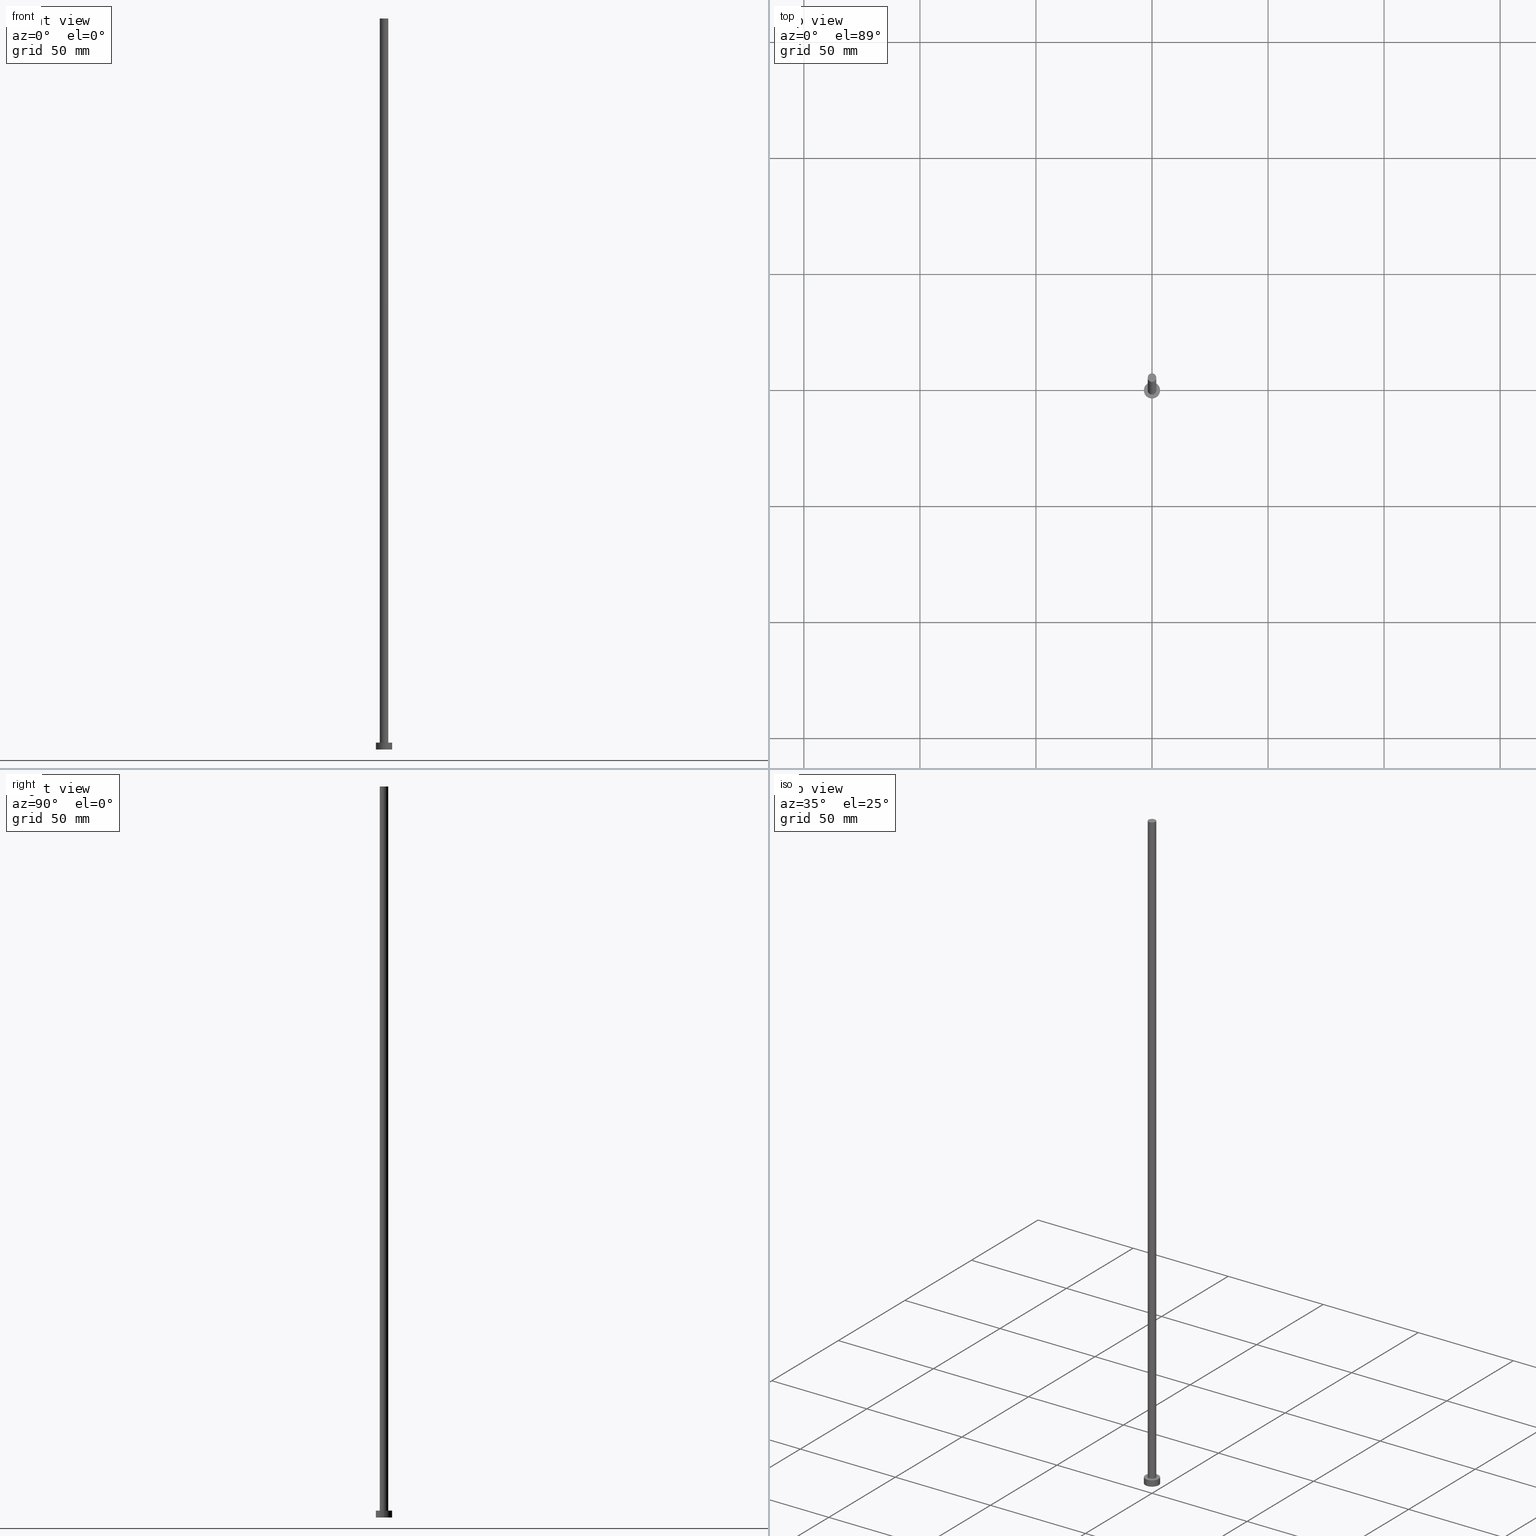
[diagram: canonical four-view strip — front | top / right | iso, engineering-drawing reading convention]
A machine part, canonical four-view strip (front | top / right | iso — engineering-drawing reading convention). The complete STEP part file that produces these views, byte-faithful:
ISO-10303-21;
HEADER;
FILE_DESCRIPTION (( 'STEP AP203' ),
    '1' );
FILE_NAME ('9837.STEP',
    '2026-02-11T15:50:41',
    ( '' ),
    ( '' ),
    'SwSTEP 2.0',
    'SolidWorks 2019',
    '' );
FILE_SCHEMA (( 'CONFIG_CONTROL_DESIGN' ));
ENDSEC;

DATA;
#1 = EDGE_CURVE ( 'NONE', #177, #40, #57, .T. ) ;
#2 = DIRECTION ( 'NONE',  ( 1.000000000000000000, 0.000000000000000000, 0.000000000000000000 ) ) ;
#3 = ORIENTED_EDGE ( 'NONE', *, *, #1, .T. ) ;
#4 = DATE_AND_TIME ( #220, #72 ) ;
#5 = VERTEX_POINT ( 'NONE', #159 ) ;
#6 = CALENDAR_DATE ( 2026, 11, 2 ) ;
#7 = VERTEX_POINT ( 'NONE', #65 ) ;
#8 =( LENGTH_UNIT ( ) NAMED_UNIT ( * ) SI_UNIT ( .MILLI., .METRE. ) );
#9 = ORIENTED_EDGE ( 'NONE', *, *, #173, .F. ) ;
#10 = LINE ( 'NONE', #33, #174 ) ;
#11 = CARTESIAN_POINT ( 'NONE',  ( -3.500000000000000444, 0.000000000000000000, 3.000000000000000000 ) ) ;
#12 = CALENDAR_DATE ( 2026, 11, 2 ) ;
#13 = FACE_OUTER_BOUND ( 'NONE', #138, .T. ) ;
#14 = CALENDAR_DATE ( 2026, 11, 2 ) ;
#15 = AXIS2_PLACEMENT_3D ( 'NONE', #191, #213, #146 ) ;
#16 = EDGE_CURVE ( 'NONE', #40, #177, #201, .T. ) ;
#17 = CC_DESIGN_PERSON_AND_ORGANIZATION_ASSIGNMENT ( #62, #122, ( #244 ) ) ;
#18 = CLOSED_SHELL ( 'NONE', ( #166, #189, #137, #198, #136, #123, #64 ) ) ;
#19 = UNCERTAINTY_MEASURE_WITH_UNIT (LENGTH_MEASURE( 1.000000000000000082E-05 ), #8, 'distance_accuracy_value', 'NONE');
#20 = APPLICATION_CONTEXT ( 'configuration controlled 3d designs of mechanical parts and assemblies' ) ;
#21 = ORIENTED_EDGE ( 'NONE', *, *, #209, .T. ) ;
#22 = PERSON_AND_ORGANIZATION ( #242, #180 ) ;
#23 = EDGE_LOOP ( 'NONE', ( #162, #77, #119, #38 ) ) ;
#24 = DIRECTION ( 'NONE',  ( 1.000000000000000000, 0.000000000000000000, 0.000000000000000000 ) ) ;
#25 = CIRCLE ( 'NONE', #80, 1.850000000000000089 ) ;
#26 = PERSON_AND_ORGANIZATION_ROLE ( 'creator' ) ;
#27 = EDGE_LOOP ( 'NONE', ( #21, #241 ) ) ;
#28 = DIRECTION ( 'NONE',  ( 0.000000000000000000, 0.000000000000000000, 1.000000000000000000 ) ) ;
#29 = FACE_OUTER_BOUND ( 'NONE', #179, .T. ) ;
#30 = PERSON_AND_ORGANIZATION ( #242, #180 ) ;
#31 = DIRECTION ( 'NONE',  ( -0.000000000000000000, -0.000000000000000000, -1.000000000000000000 ) ) ;
#32 = APPROVAL_STATUS ( 'not_yet_approved' ) ;
#33 = CARTESIAN_POINT ( 'NONE',  ( 1.850000000000000089, 2.265596578422603100E-16, 315.0000000000000000 ) ) ;
#34 = PRODUCT_DEFINITION_FORMATION_WITH_SPECIFIED_SOURCE ( 'LIBOVOLN�', '', #244, .NOT_KNOWN. ) ;
#35 = EDGE_CURVE ( 'NONE', #156, #116, #153, .T. ) ;
#36 = LOCAL_TIME ( 16, 50, 41.00000000000000000, #181 ) ;
#37 = CIRCLE ( 'NONE', #15, 3.500000000000000444 ) ;
#38 = ORIENTED_EDGE ( 'NONE', *, *, #243, .T. ) ;
#39 = DIRECTION ( 'NONE',  ( -1.000000000000000000, 0.000000000000000000, 0.000000000000000000 ) ) ;
#40 = VERTEX_POINT ( 'NONE', #144 ) ;
#41 = APPROVAL_ROLE ( '' ) ;
#42 = CARTESIAN_POINT ( 'NONE',  ( 0.000000000000000000, 0.000000000000000000, 3.000000000000000000 ) ) ;
#43 = DIRECTION ( 'NONE',  ( 0.000000000000000000, 0.000000000000000000, 1.000000000000000000 ) ) ;
#44 = ORIENTED_EDGE ( 'NONE', *, *, #89, .T. ) ;
#45 = LOCAL_TIME ( 16, 50, 41.00000000000000000, #50 ) ;
#46 = CARTESIAN_POINT ( 'NONE',  ( 0.000000000000000000, 0.000000000000000000, 0.000000000000000000 ) ) ;
#47 = CARTESIAN_POINT ( 'NONE',  ( 1.850000000000000089, 2.265596578422603100E-16, 3.000000000000000000 ) ) ;
#48 = APPROVAL_DATE_TIME ( #197, #254 ) ;
#49 = LINE ( 'NONE', #129, #60 ) ;
#50 = COORDINATED_UNIVERSAL_TIME_OFFSET ( 1, 0, .AHEAD. ) ;
#51 = CARTESIAN_POINT ( 'NONE',  ( 0.000000000000000000, 0.000000000000000000, 315.0000000000000000 ) ) ;
#52 = LOCAL_TIME ( 16, 50, 41.00000000000000000, #226 ) ;
#53 = DATE_AND_TIME ( #14, #97 ) ;
#54 = DIRECTION ( 'NONE',  ( 1.000000000000000000, 0.000000000000000000, 0.000000000000000000 ) ) ;
#55 = PERSON_AND_ORGANIZATION ( #242, #180 ) ;
#56 = CARTESIAN_POINT ( 'NONE',  ( -1.850000000000000089, 0.000000000000000000, 315.0000000000000000 ) ) ;
#57 = CIRCLE ( 'NONE', #115, 1.850000000000000089 ) ;
#58 = ORIENTED_EDGE ( 'NONE', *, *, #16, .T. ) ;
#59 = DIRECTION ( 'NONE',  ( 0.000000000000000000, 0.000000000000000000, 1.000000000000000000 ) ) ;
#60 = VECTOR ( 'NONE', #130, 1000.000000000000000 ) ;
#61 = VERTEX_POINT ( 'NONE', #47 ) ;
#62 = PERSON_AND_ORGANIZATION ( #242, #180 ) ;
#63 = VERTEX_POINT ( 'NONE', #73 ) ;
#64 = ADVANCED_FACE ( 'NONE', ( #152 ), #94, .T. ) ;
#65 = CARTESIAN_POINT ( 'NONE',  ( 3.500000000000000444, 4.286263797015737088E-16, 0.000000000000000000 ) ) ;
#66 = APPLICATION_PROTOCOL_DEFINITION ( 'international standard', 'config_control_design', 1994, #150 ) ;
#67 = ORIENTED_EDGE ( 'NONE', *, *, #209, .F. ) ;
#68 = APPROVAL_STATUS ( 'not_yet_approved' ) ;
#69 = FACE_OUTER_BOUND ( 'NONE', #206, .T. ) ;
#70 = CYLINDRICAL_SURFACE ( 'NONE', #255, 3.500000000000000444 ) ;
#71 = LINE ( 'NONE', #252, #222 ) ;
#72 = LOCAL_TIME ( 16, 50, 41.00000000000000000, #178 ) ;
#73 = CARTESIAN_POINT ( 'NONE',  ( -1.850000000000000089, 0.000000000000000000, 3.000000000000000000 ) ) ;
#74 = CIRCLE ( 'NONE', #251, 1.850000000000000089 ) ;
#75 = ADVANCED_BREP_SHAPE_REPRESENTATION ( '9837', ( #91, #143 ), #231 ) ;
#76 = PLANE ( 'NONE',  #96 ) ;
#77 = ORIENTED_EDGE ( 'NONE', *, *, #1, .F. ) ;
#78 = DIRECTION ( 'NONE',  ( 0.000000000000000000, 0.000000000000000000, 1.000000000000000000 ) ) ;
#79 = EDGE_CURVE ( 'NONE', #7, #5, #37, .T. ) ;
#80 = AXIS2_PLACEMENT_3D ( 'NONE', #160, #155, #2 ) ;
#81 = DIRECTION ( 'NONE',  ( 1.000000000000000000, 0.000000000000000000, 0.000000000000000000 ) ) ;
#82 = DATE_AND_TIME ( #6, #36 ) ;
#83 = PRODUCT_DEFINITION_SHAPE ( 'NONE', 'NONE',  #93 ) ;
#84 =( NAMED_UNIT ( * ) PLANE_ANGLE_UNIT ( ) SI_UNIT ( $, .RADIAN. ) );
#85 = ORIENTED_EDGE ( 'NONE', *, *, #79, .T. ) ;
#86 = CC_DESIGN_DATE_AND_TIME_ASSIGNMENT ( #4, #139, ( #93 ) ) ;
#87 =( NAMED_UNIT ( * ) SI_UNIT ( $, .STERADIAN. ) SOLID_ANGLE_UNIT ( ) );
#88 = DIRECTION ( 'NONE',  ( 0.000000000000000000, 0.000000000000000000, 1.000000000000000000 ) ) ;
#89 = EDGE_CURVE ( 'NONE', #5, #7, #230, .T. ) ;
#90 = CARTESIAN_POINT ( 'NONE',  ( 0.000000000000000000, 0.000000000000000000, 0.000000000000000000 ) ) ;
#91 = MANIFOLD_SOLID_BREP ( 'P�idat vysunut�m3', #18 ) ;
#92 = DIRECTION ( 'NONE',  ( -0.000000000000000000, -0.000000000000000000, -1.000000000000000000 ) ) ;
#93 = PRODUCT_DEFINITION ( 'NEZN�M�', '', #34, #253 ) ;
#94 = PLANE ( 'NONE',  #124 ) ;
#95 = AXIS2_PLACEMENT_3D ( 'NONE', #42, #183, #245 ) ;
#96 = AXIS2_PLACEMENT_3D ( 'NONE', #207, #59, #204 ) ;
#97 = LOCAL_TIME ( 16, 50, 41.00000000000000000, #248 ) ;
#98 = EDGE_CURVE ( 'NONE', #156, #7, #71, .T. ) ;
#99 = EDGE_LOOP ( 'NONE', ( #125, #67, #182, #44 ) ) ;
#100 = DIRECTION ( 'NONE',  ( -0.000000000000000000, -0.000000000000000000, -1.000000000000000000 ) ) ;
#101 = CARTESIAN_POINT ( 'NONE',  ( 0.000000000000000000, 0.000000000000000000, 315.0000000000000000 ) ) ;
#102 = PERSON_AND_ORGANIZATION ( #242, #180 ) ;
#103 = ORIENTED_EDGE ( 'NONE', *, *, #89, .F. ) ;
#104 = CC_DESIGN_PERSON_AND_ORGANIZATION_ASSIGNMENT ( #55, #165, ( #34 ) ) ;
#105 = DIRECTION ( 'NONE',  ( 0.000000000000000000, 0.000000000000000000, 1.000000000000000000 ) ) ;
#106 = APPLICATION_PROTOCOL_DEFINITION ( 'international standard', 'config_control_design', 1994, #20 ) ;
#107 = DIRECTION ( 'NONE',  ( 0.000000000000000000, 0.000000000000000000, 1.000000000000000000 ) ) ;
#108 = DIRECTION ( 'NONE',  ( -0.000000000000000000, -0.000000000000000000, -1.000000000000000000 ) ) ;
#109 = APPROVAL_PERSON_ORGANIZATION ( #234, #175, #172 ) ;
#110 = DIRECTION ( 'NONE',  ( -0.000000000000000000, -0.000000000000000000, -1.000000000000000000 ) ) ;
#111 = APPROVAL_DATE_TIME ( #134, #175 ) ;
#112 = DIRECTION ( 'NONE',  ( -1.000000000000000000, 0.000000000000000000, 0.000000000000000000 ) ) ;
#113 = AXIS2_PLACEMENT_3D ( 'NONE', #133, #92, #190 ) ;
#114 = EDGE_CURVE ( 'NONE', #177, #63, #235, .T. ) ;
#115 = AXIS2_PLACEMENT_3D ( 'NONE', #101, #105, #81 ) ;
#116 = VERTEX_POINT ( 'NONE', #11 ) ;
#117 = CC_DESIGN_PERSON_AND_ORGANIZATION_ASSIGNMENT ( #22, #26, ( #93 ) ) ;
#118 = MECHANICAL_CONTEXT ( 'NONE', #20, 'mechanical' ) ;
#119 = ORIENTED_EDGE ( 'NONE', *, *, #114, .T. ) ;
#120 = DIRECTION ( 'NONE',  ( 1.000000000000000000, 0.000000000000000000, 0.000000000000000000 ) ) ;
#121 = EDGE_LOOP ( 'NONE', ( #200, #238 ) ) ;
#122 = PERSON_AND_ORGANIZATION_ROLE ( 'design_owner' ) ;
#123 = ADVANCED_FACE ( 'NONE', ( #164 ), #132, .T. ) ;
#124 = AXIS2_PLACEMENT_3D ( 'NONE', #148, #28, #210 ) ;
#125 = ORIENTED_EDGE ( 'NONE', *, *, #98, .F. ) ;
#126 = EDGE_CURVE ( 'NONE', #40, #61, #10, .T. ) ;
#127 = ORIENTED_EDGE ( 'NONE', *, *, #114, .F. ) ;
#128 = DIRECTION ( 'NONE',  ( 1.000000000000000000, 0.000000000000000000, 0.000000000000000000 ) ) ;
#129 = CARTESIAN_POINT ( 'NONE',  ( -3.500000000000000444, 0.000000000000000000, 3.000000000000000000 ) ) ;
#130 = DIRECTION ( 'NONE',  ( -0.000000000000000000, -0.000000000000000000, -1.000000000000000000 ) ) ;
#131 = AXIS2_PLACEMENT_3D ( 'NONE', #158, #100, #39 ) ;
#132 = CYLINDRICAL_SURFACE ( 'NONE', #113, 1.850000000000000089 ) ;
#133 = CARTESIAN_POINT ( 'NONE',  ( 0.000000000000000000, 0.000000000000000000, 315.0000000000000000 ) ) ;
#134 = DATE_AND_TIME ( #12, #45 ) ;
#135 = CIRCLE ( 'NONE', #246, 3.500000000000000444 ) ;
#136 = ADVANCED_FACE ( 'NONE', ( #29 ), #211, .F. ) ;
#137 = ADVANCED_FACE ( 'NONE', ( #167 ), #70, .T. ) ;
#138 = EDGE_LOOP ( 'NONE', ( #185, #154, #85, #9 ) ) ;
#139 = DATE_TIME_ROLE ( 'creation_date' ) ;
#140 = DIRECTION ( 'NONE',  ( 1.000000000000000000, 0.000000000000000000, 0.000000000000000000 ) ) ;
#141 = DIRECTION ( 'NONE',  ( 0.000000000000000000, 0.000000000000000000, 1.000000000000000000 ) ) ;
#142 = CC_DESIGN_PERSON_AND_ORGANIZATION_ASSIGNMENT ( #151, #147, ( #223 ) ) ;
#143 = AXIS2_PLACEMENT_3D ( 'NONE', #46, #43, #24 ) ;
#144 = CARTESIAN_POINT ( 'NONE',  ( 1.850000000000000089, 2.265596578422603100E-16, 315.0000000000000000 ) ) ;
#145 = APPROVAL_ROLE ( '' ) ;
#146 = DIRECTION ( 'NONE',  ( 1.000000000000000000, 0.000000000000000000, 0.000000000000000000 ) ) ;
#147 = PERSON_AND_ORGANIZATION_ROLE ( 'classification_officer' ) ;
#148 = CARTESIAN_POINT ( 'NONE',  ( 0.000000000000000000, 0.000000000000000000, 315.0000000000000000 ) ) ;
#149 = CYLINDRICAL_SURFACE ( 'NONE', #131, 3.500000000000000444 ) ;
#150 = APPLICATION_CONTEXT ( 'configuration controlled 3d designs of mechanical parts and assemblies' ) ;
#151 = PERSON_AND_ORGANIZATION ( #242, #180 ) ;
#152 = FACE_OUTER_BOUND ( 'NONE', #203, .T. ) ;
#153 = CIRCLE ( 'NONE', #95, 3.500000000000000444 ) ;
#154 = ORIENTED_EDGE ( 'NONE', *, *, #98, .T. ) ;
#155 = DIRECTION ( 'NONE',  ( 0.000000000000000000, 0.000000000000000000, 1.000000000000000000 ) ) ;
#156 = VERTEX_POINT ( 'NONE', #229 ) ;
#157 = AXIS2_PLACEMENT_3D ( 'NONE', #240, #141, #140 ) ;
#158 = CARTESIAN_POINT ( 'NONE',  ( 0.000000000000000000, 0.000000000000000000, 3.000000000000000000 ) ) ;
#159 = CARTESIAN_POINT ( 'NONE',  ( -3.500000000000000444, 0.000000000000000000, 0.000000000000000000 ) ) ;
#160 = CARTESIAN_POINT ( 'NONE',  ( 0.000000000000000000, 0.000000000000000000, 3.000000000000000000 ) ) ;
#161 = ORIENTED_EDGE ( 'NONE', *, *, #16, .F. ) ;
#162 = ORIENTED_EDGE ( 'NONE', *, *, #126, .F. ) ;
#163 = CARTESIAN_POINT ( 'NONE',  ( 0.000000000000000000, 0.000000000000000000, 3.000000000000000000 ) ) ;
#164 = FACE_OUTER_BOUND ( 'NONE', #23, .T. ) ;
#165 = PERSON_AND_ORGANIZATION_ROLE ( 'design_supplier' ) ;
#166 = ADVANCED_FACE ( 'NONE', ( #69 ), #168, .T. ) ;
#167 = FACE_OUTER_BOUND ( 'NONE', #99, .T. ) ;
#168 = CYLINDRICAL_SURFACE ( 'NONE', #194, 1.850000000000000089 ) ;
#169 = SECURITY_CLASSIFICATION_LEVEL ( 'unclassified' ) ;
#170 = DIRECTION ( 'NONE',  ( 0.000000000000000000, 0.000000000000000000, 1.000000000000000000 ) ) ;
#171 = CC_DESIGN_APPROVAL ( #237, ( #34 ) ) ;
#172 = APPROVAL_ROLE ( '' ) ;
#173 = EDGE_CURVE ( 'NONE', #116, #5, #49, .T. ) ;
#174 = VECTOR ( 'NONE', #108, 1000.000000000000000 ) ;
#175 = APPROVAL ( #32, 'NEUR�EN�' ) ;
#176 = CC_DESIGN_SECURITY_CLASSIFICATION ( #223, ( #34 ) ) ;
#177 = VERTEX_POINT ( 'NONE', #250 ) ;
#178 = COORDINATED_UNIVERSAL_TIME_OFFSET ( 1, 0, .AHEAD. ) ;
#179 = EDGE_LOOP ( 'NONE', ( #103, #215 ) ) ;
#180 = ORGANIZATION ( 'NEUR�EN�', 'NEUR�EN�', '' ) ;
#181 = COORDINATED_UNIVERSAL_TIME_OFFSET ( 1, 0, .AHEAD. ) ;
#182 = ORIENTED_EDGE ( 'NONE', *, *, #173, .T. ) ;
#183 = DIRECTION ( 'NONE',  ( 0.000000000000000000, 0.000000000000000000, 1.000000000000000000 ) ) ;
#184 = PERSON_AND_ORGANIZATION ( #242, #180 ) ;
#185 = ORIENTED_EDGE ( 'NONE', *, *, #35, .F. ) ;
#186 = SHAPE_DEFINITION_REPRESENTATION ( #83, #75 ) ;
#187 = VECTOR ( 'NONE', #110, 1000.000000000000000 ) ;
#188 = DIRECTION ( 'NONE',  ( 1.000000000000000000, 0.000000000000000000, -0.000000000000000000 ) ) ;
#189 = ADVANCED_FACE ( 'NONE', ( #13 ), #149, .T. ) ;
#190 = DIRECTION ( 'NONE',  ( -1.000000000000000000, 0.000000000000000000, 0.000000000000000000 ) ) ;
#191 = CARTESIAN_POINT ( 'NONE',  ( 0.000000000000000000, 0.000000000000000000, 0.000000000000000000 ) ) ;
#192 = APPROVAL_DATE_TIME ( #82, #237 ) ;
#193 = CC_DESIGN_PERSON_AND_ORGANIZATION_ASSIGNMENT ( #30, #228, ( #34 ) ) ;
#194 = AXIS2_PLACEMENT_3D ( 'NONE', #51, #227, #112 ) ;
#195 = CC_DESIGN_APPROVAL ( #175, ( #223 ) ) ;
#196 = AXIS2_PLACEMENT_3D ( 'NONE', #208, #170, #54 ) ;
#197 = DATE_AND_TIME ( #202, #52 ) ;
#198 = ADVANCED_FACE ( 'NONE', ( #239, #224 ), #76, .T. ) ;
#199 = CARTESIAN_POINT ( 'NONE',  ( 0.000000000000000000, 0.000000000000000000, 3.000000000000000000 ) ) ;
#200 = ORIENTED_EDGE ( 'NONE', *, *, #243, .F. ) ;
#201 = CIRCLE ( 'NONE', #157, 1.850000000000000089 ) ;
#202 = CALENDAR_DATE ( 2026, 11, 2 ) ;
#203 = EDGE_LOOP ( 'NONE', ( #3, #58 ) ) ;
#204 = DIRECTION ( 'NONE',  ( 1.000000000000000000, 0.000000000000000000, -0.000000000000000000 ) ) ;
#205 = PRODUCT_RELATED_PRODUCT_CATEGORY ( 'detail', '', ( #244 ) ) ;
#206 = EDGE_LOOP ( 'NONE', ( #161, #221, #218, #127 ) ) ;
#207 = CARTESIAN_POINT ( 'NONE',  ( 0.000000000000000000, 0.000000000000000000, 3.000000000000000000 ) ) ;
#208 = CARTESIAN_POINT ( 'NONE',  ( 0.000000000000000000, 0.000000000000000000, 0.000000000000000000 ) ) ;
#209 = EDGE_CURVE ( 'NONE', #116, #156, #135, .T. ) ;
#210 = DIRECTION ( 'NONE',  ( 1.000000000000000000, 0.000000000000000000, -0.000000000000000000 ) ) ;
#211 = PLANE ( 'NONE',  #216 ) ;
#212 = DATE_TIME_ROLE ( 'classification_date' ) ;
#213 = DIRECTION ( 'NONE',  ( 0.000000000000000000, 0.000000000000000000, 1.000000000000000000 ) ) ;
#214 = EDGE_CURVE ( 'NONE', #61, #63, #25, .T. ) ;
#215 = ORIENTED_EDGE ( 'NONE', *, *, #79, .F. ) ;
#216 = AXIS2_PLACEMENT_3D ( 'NONE', #90, #88, #188 ) ;
#217 = APPROVAL_PERSON_ORGANIZATION ( #184, #254, #145 ) ;
#218 = ORIENTED_EDGE ( 'NONE', *, *, #214, .T. ) ;
#219 = APPROVAL_STATUS ( 'not_yet_approved' ) ;
#220 = CALENDAR_DATE ( 2026, 11, 2 ) ;
#221 = ORIENTED_EDGE ( 'NONE', *, *, #126, .T. ) ;
#222 = VECTOR ( 'NONE', #247, 1000.000000000000000 ) ;
#223 = SECURITY_CLASSIFICATION ( '', '', #169 ) ;
#224 = FACE_OUTER_BOUND ( 'NONE', #27, .T. ) ;
#225 = CC_DESIGN_DATE_AND_TIME_ASSIGNMENT ( #53, #212, ( #223 ) ) ;
#226 = COORDINATED_UNIVERSAL_TIME_OFFSET ( 1, 0, .AHEAD. ) ;
#227 = DIRECTION ( 'NONE',  ( -0.000000000000000000, -0.000000000000000000, -1.000000000000000000 ) ) ;
#228 = PERSON_AND_ORGANIZATION_ROLE ( 'creator' ) ;
#229 = CARTESIAN_POINT ( 'NONE',  ( 3.500000000000000444, 4.286263797015737088E-16, 3.000000000000000000 ) ) ;
#230 = CIRCLE ( 'NONE', #196, 3.500000000000000444 ) ;
#231 =( GEOMETRIC_REPRESENTATION_CONTEXT ( 3 ) GLOBAL_UNCERTAINTY_ASSIGNED_CONTEXT ( ( #19 ) ) GLOBAL_UNIT_ASSIGNED_CONTEXT ( ( #8, #84, #87 ) ) REPRESENTATION_CONTEXT ( 'NONE', 'WORKASPACE' ) );
#232 = APPROVAL_PERSON_ORGANIZATION ( #102, #237, #41 ) ;
#233 = CARTESIAN_POINT ( 'NONE',  ( 0.000000000000000000, 0.000000000000000000, 3.000000000000000000 ) ) ;
#234 = PERSON_AND_ORGANIZATION ( #242, #180 ) ;
#235 = LINE ( 'NONE', #56, #187 ) ;
#236 = CC_DESIGN_APPROVAL ( #254, ( #93 ) ) ;
#237 = APPROVAL ( #219, 'NEUR�EN�' ) ;
#238 = ORIENTED_EDGE ( 'NONE', *, *, #214, .F. ) ;
#239 = FACE_BOUND ( 'NONE', #121, .T. ) ;
#240 = CARTESIAN_POINT ( 'NONE',  ( 0.000000000000000000, 0.000000000000000000, 315.0000000000000000 ) ) ;
#241 = ORIENTED_EDGE ( 'NONE', *, *, #35, .T. ) ;
#242 = PERSON ( 'NEUR�EN�', 'NEUR�EN�', 'NEUR�EN�', ('NEUR�EN�'), ('NEUR�EN�'), ('NEUR�EN�') ) ;
#243 = EDGE_CURVE ( 'NONE', #63, #61, #74, .T. ) ;
#244 = PRODUCT ( '9837', '9837', '', ( #118 ) ) ;
#245 = DIRECTION ( 'NONE',  ( 1.000000000000000000, 0.000000000000000000, 0.000000000000000000 ) ) ;
#246 = AXIS2_PLACEMENT_3D ( 'NONE', #163, #78, #120 ) ;
#247 = DIRECTION ( 'NONE',  ( -0.000000000000000000, -0.000000000000000000, -1.000000000000000000 ) ) ;
#248 = COORDINATED_UNIVERSAL_TIME_OFFSET ( 1, 0, .AHEAD. ) ;
#249 = DIRECTION ( 'NONE',  ( -1.000000000000000000, 0.000000000000000000, 0.000000000000000000 ) ) ;
#250 = CARTESIAN_POINT ( 'NONE',  ( -1.850000000000000089, 0.000000000000000000, 315.0000000000000000 ) ) ;
#251 = AXIS2_PLACEMENT_3D ( 'NONE', #199, #107, #128 ) ;
#252 = CARTESIAN_POINT ( 'NONE',  ( 3.500000000000000444, 4.286263797015737088E-16, 3.000000000000000000 ) ) ;
#253 = DESIGN_CONTEXT ( 'detailed design', #150, 'design' ) ;
#254 = APPROVAL ( #68, 'NEUR�EN�' ) ;
#255 = AXIS2_PLACEMENT_3D ( 'NONE', #233, #31, #249 ) ;
ENDSEC;
END-ISO-10303-21;
